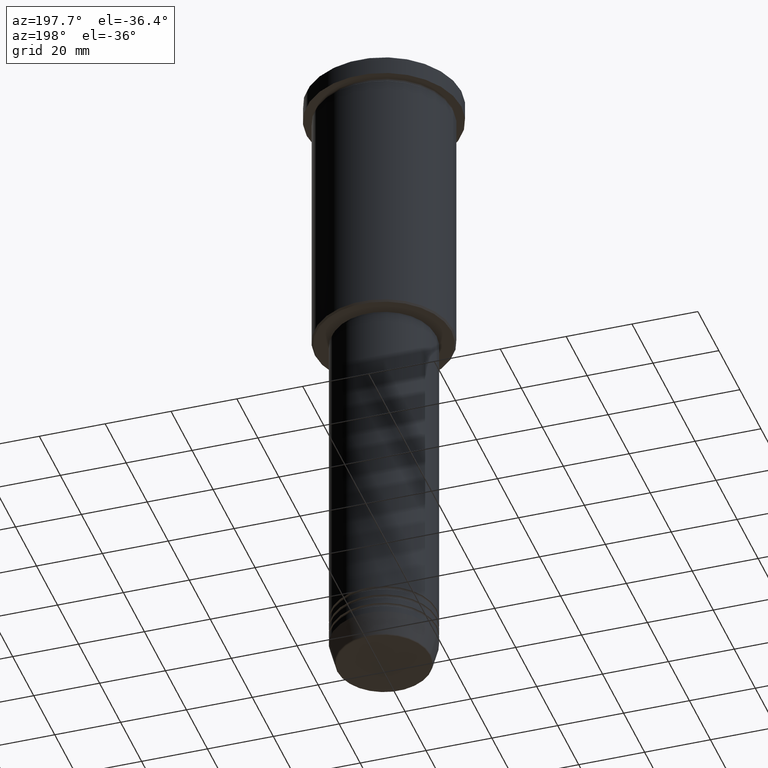
[diagram: clean part render]
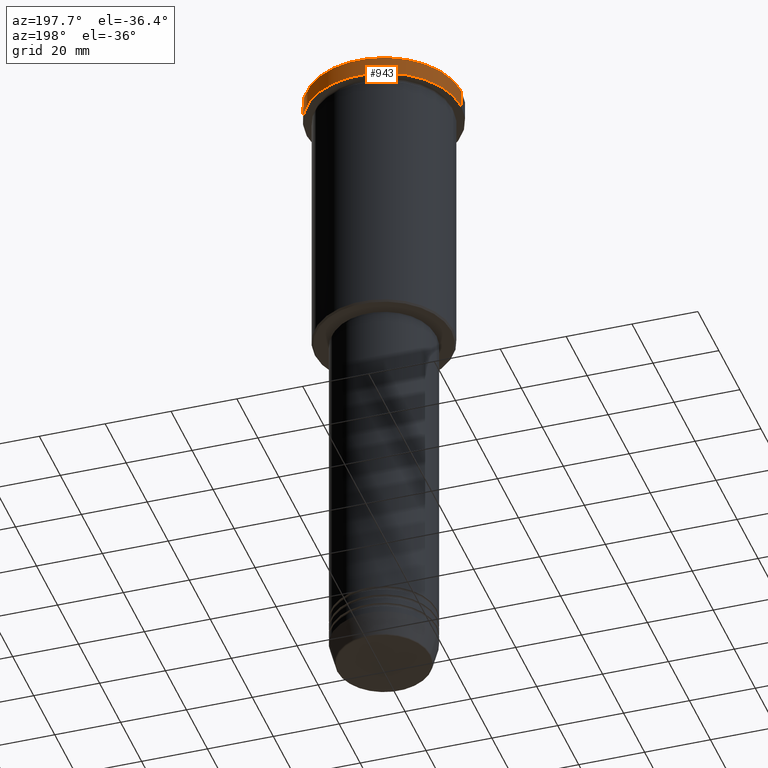
[diagram: same view with one face highlighted and labeled with its STEP entity id]
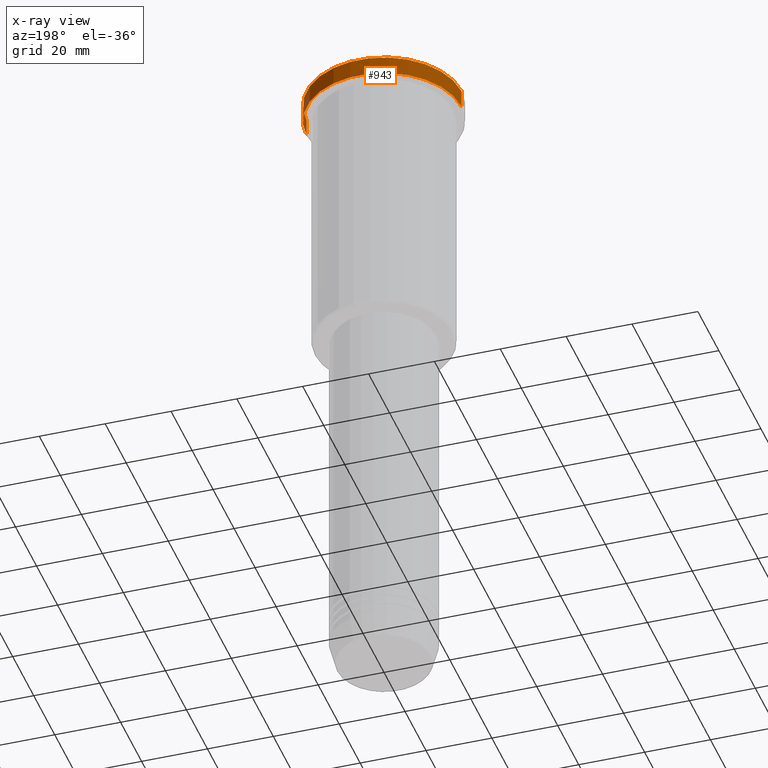
[diagram: x-ray of the same camera — body ghosted, the highlighted face saturated]
A machine part, auxiliary view. The second image highlights one B-rep face of the part: STEP entity #943.
The next image is the same camera in x-ray: the body ghosted, the highlighted face saturated — about 0% of this face is hidden behind the body in this view.
In plain terms, the highlighted cylindrical surface (partial cylindrical patch) has radius 23.5 mm, axis along (-0, -0, 1).
Its self-contained STEP definition (entity closure, byte-faithful):
#29 = EDGE_CURVE ( 'NONE', #541, #777, #37, .T. ) ;
#35 = CARTESIAN_POINT ( 'NONE',  ( 23.50000000000000000, 0.000000000000000000, -5.999999999999994671 ) ) ;
#37 = LINE ( 'NONE', #486, #363 ) ;
#87 = CARTESIAN_POINT ( 'NONE',  ( 23.50000000000000000, 0.000000000000000000, 0.000000000000000000 ) ) ;
#132 = DIRECTION ( 'NONE',  ( 1.000000000000000000, 0.000000000000000000, 0.000000000000000000 ) ) ;
#146 = CARTESIAN_POINT ( 'NONE',  ( 23.50000000000000000, 0.000000000000000000, -0.5000000000000004441 ) ) ;
#170 = LINE ( 'NONE', #87, #402 ) ;
#235 = AXIS2_PLACEMENT_3D ( 'NONE', #1145, #530, #621 ) ;
#270 = CARTESIAN_POINT ( 'NONE',  ( -23.50000000000000000, 2.877919977996280320E-15, -0.5000000000000004441 ) ) ;
#288 = EDGE_CURVE ( 'NONE', #893, #603, #170, .T. ) ;
#328 = AXIS2_PLACEMENT_3D ( 'NONE', #762, #945, #132 ) ;
#363 = VECTOR ( 'NONE', #396, 1000.000000000000000 ) ;
#386 = CARTESIAN_POINT ( 'NONE',  ( -23.50000000000000000, 2.877919977996280320E-15, -5.999999999999994671 ) ) ;
#387 = CARTESIAN_POINT ( 'NONE',  ( 0.000000000000000000, 0.000000000000000000, -0.5000000000000004441 ) ) ;
#392 = CYLINDRICAL_SURFACE ( 'NONE', #235, 23.50000000000000000 ) ;
#396 = DIRECTION ( 'NONE',  ( -0.000000000000000000, -0.000000000000000000, 1.000000000000000000 ) ) ;
#402 = VECTOR ( 'NONE', #453, 1000.000000000000000 ) ;
#405 = DIRECTION ( 'NONE',  ( 1.000000000000000000, 0.000000000000000000, 0.000000000000000000 ) ) ;
#453 = DIRECTION ( 'NONE',  ( -0.000000000000000000, -0.000000000000000000, 1.000000000000000000 ) ) ;
#474 = ORIENTED_EDGE ( 'NONE', *, *, #852, .T. ) ;
#486 = CARTESIAN_POINT ( 'NONE',  ( -23.50000000000000000, 2.877919977996280320E-15, 0.000000000000000000 ) ) ;
#501 = FACE_OUTER_BOUND ( 'NONE', #1111, .T. ) ;
#530 = DIRECTION ( 'NONE',  ( -0.000000000000000000, -0.000000000000000000, 1.000000000000000000 ) ) ;
#541 = VERTEX_POINT ( 'NONE', #386 ) ;
#588 = DIRECTION ( 'NONE',  ( 0.000000000000000000, 0.000000000000000000, -1.000000000000000000 ) ) ;
#603 = VERTEX_POINT ( 'NONE', #146 ) ;
#621 = DIRECTION ( 'NONE',  ( 1.000000000000000000, 0.000000000000000000, 0.000000000000000000 ) ) ;
#709 = ORIENTED_EDGE ( 'NONE', *, *, #288, .F. ) ;
#710 = EDGE_CURVE ( 'NONE', #893, #541, #711, .T. ) ;
#711 = CIRCLE ( 'NONE', #328, 23.50000000000000000 ) ;
#762 = CARTESIAN_POINT ( 'NONE',  ( 0.000000000000000000, 0.000000000000000000, -5.999999999999994671 ) ) ;
#777 = VERTEX_POINT ( 'NONE', #270 ) ;
#852 = EDGE_CURVE ( 'NONE', #777, #603, #938, .T. ) ;
#893 = VERTEX_POINT ( 'NONE', #35 ) ;
#938 = CIRCLE ( 'NONE', #1036, 23.50000000000000000 ) ;
#941 = ORIENTED_EDGE ( 'NONE', *, *, #710, .T. ) ;
#943 = ADVANCED_FACE ( 'NONE', ( #501 ), #392, .T. ) ;
#945 = DIRECTION ( 'NONE',  ( -0.000000000000000000, -0.000000000000000000, 1.000000000000000000 ) ) ;
#1036 = AXIS2_PLACEMENT_3D ( 'NONE', #387, #588, #405 ) ;
#1043 = ORIENTED_EDGE ( 'NONE', *, *, #29, .T. ) ;
#1111 = EDGE_LOOP ( 'NONE', ( #941, #1043, #474, #709 ) ) ;
#1145 = CARTESIAN_POINT ( 'NONE',  ( 0.000000000000000000, 0.000000000000000000, 0.000000000000000000 ) ) ;